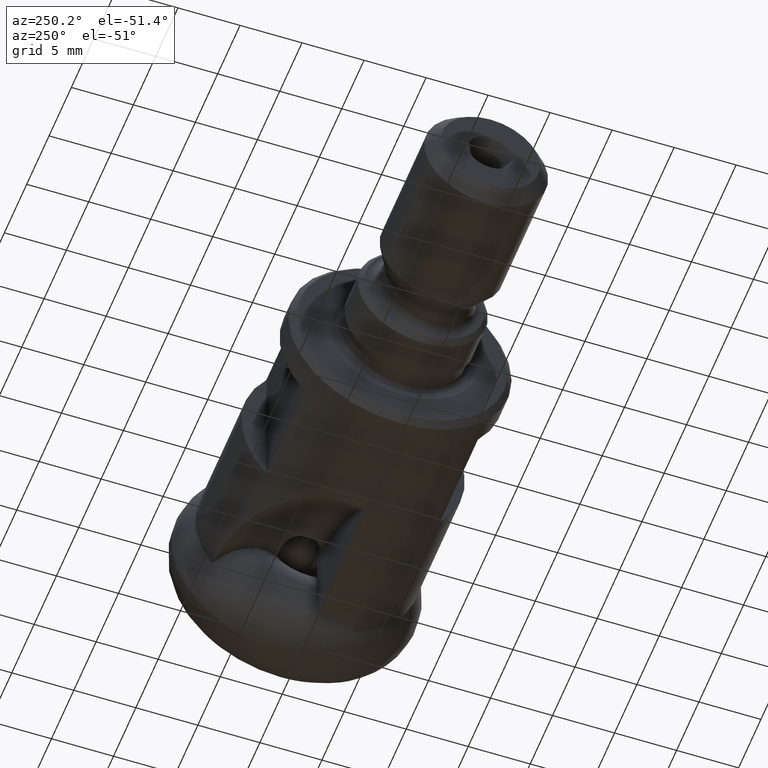
[diagram: clean part render]
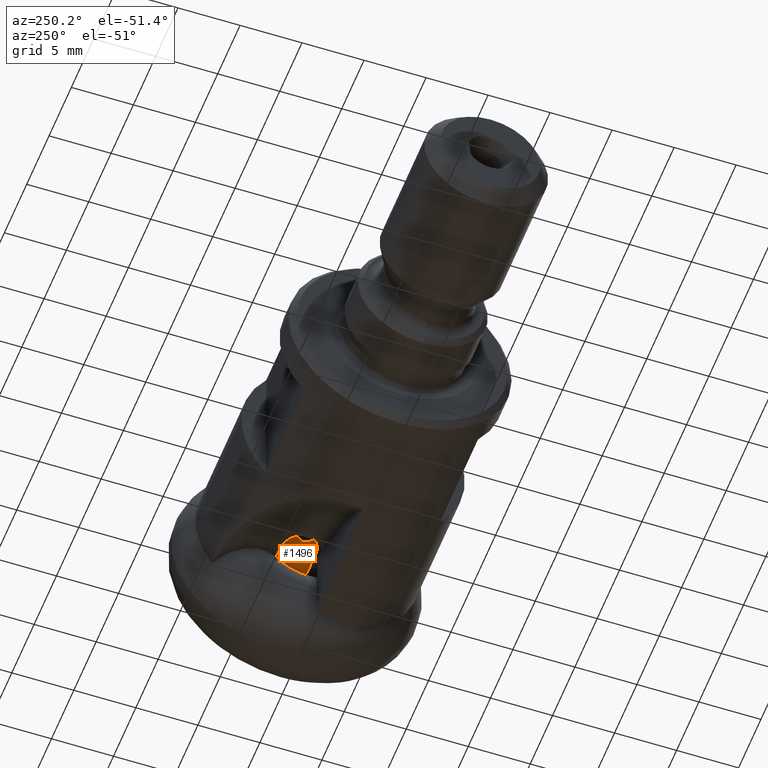
[diagram: same view with one face highlighted and labeled with its STEP entity id]
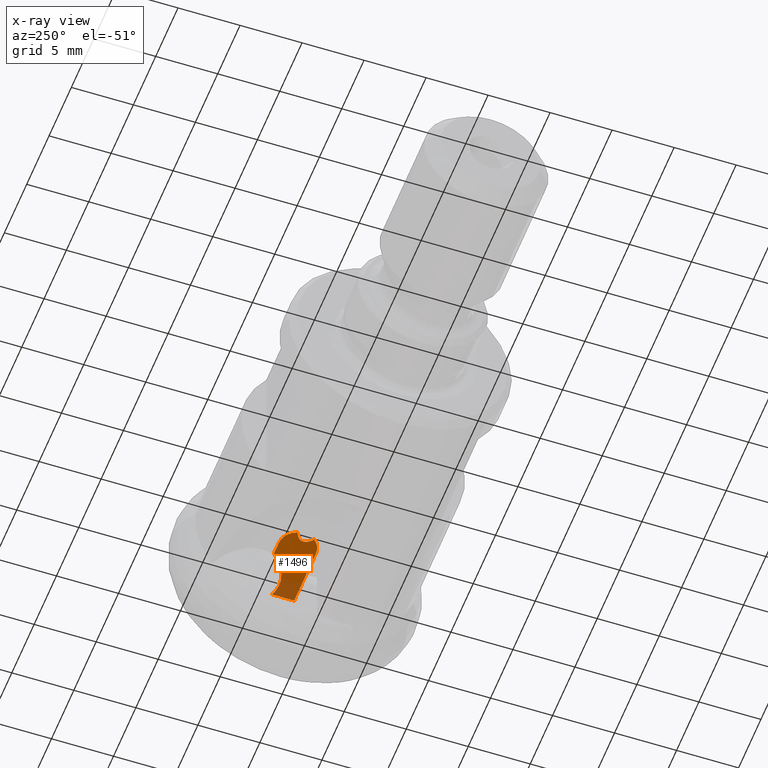
[diagram: x-ray of the same camera — body ghosted, the highlighted face saturated]
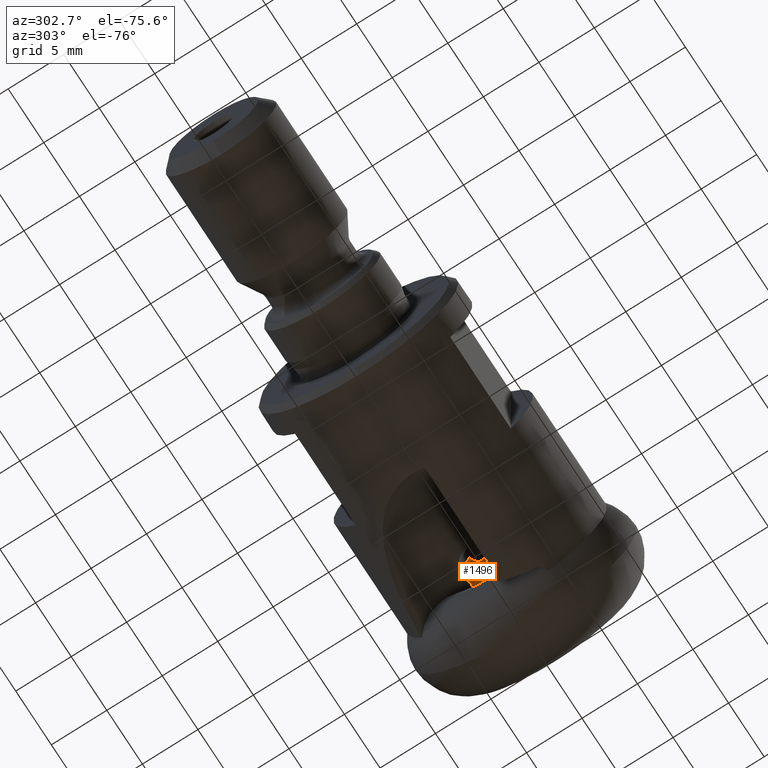
[diagram: same view with one face highlighted and labeled with its STEP entity id]
A machine part, auxiliary view. The second image highlights one B-rep face of the part: STEP entity #1496.
The next image is the same camera in x-ray: the body ghosted, the highlighted face saturated — about 21% of this face is hidden behind the body in this view.
A second angle (auxiliary view) of the same face is appended — the face is thin or edge-on in the first view.
In plain terms, the highlighted planar face has unit normal (0, 0, 1).
Its self-contained STEP definition (entity closure, byte-faithful):
#57 = CARTESIAN_POINT ( 'NONE',  ( -7.954321748443731200, 0.2754545668295102500, -1.542927206851577400 ) ) ;
#107 = VERTEX_POINT ( 'NONE', #3354 ) ;
#202 = CARTESIAN_POINT ( 'NONE',  ( -3.419915937207949100, 1.324605971110862000, -1.542927206851577600 ) ) ;
#214 = AXIS2_PLACEMENT_3D ( 'NONE', #3216, #2640, #1811 ) ;
#220 = CARTESIAN_POINT ( 'NONE',  ( -5.469791025384251900, 2.503767003735955400, -1.542927206851577400 ) ) ;
#229 = VERTEX_POINT ( 'NONE', #3406 ) ;
#298 = LINE ( 'NONE', #2189, #2265 ) ;
#340 = CARTESIAN_POINT ( 'NONE',  ( 1.330137728401510300, 2.700000000000001100, -1.542927206851577400 ) ) ;
#348 = CARTESIAN_POINT ( 'NONE',  ( -7.746609070005470200, 1.551312233072152000, -1.542927206851577400 ) ) ;
#377 = DIRECTION ( 'NONE',  ( 0.0000000000000000000, 0.0000000000000000000, 1.000000000000000000 ) ) ;
#384 = EDGE_LOOP ( 'NONE', ( #2286, #2688, #1902, #1422, #1834, #1949, #892, #3468, #727 ) ) ;
#399 = AXIS2_PLACEMENT_3D ( 'NONE', #2074, #377, #2661 ) ;
#404 = PLANE ( 'NONE',  #214 ) ;
#470 = LINE ( 'NONE', #3388, #3443 ) ;
#501 = CARTESIAN_POINT ( 'NONE',  ( -4.863859866868308400, 1.992741421398262400, -1.542927206851577600 ) ) ;
#633 = CARTESIAN_POINT ( 'NONE',  ( -8.191345038729311400, 1.688532443379743500, -1.542927206851576700 ) ) ;
#663 = CARTESIAN_POINT ( 'NONE',  ( -2.535457270089017900, 1.300931425338245600, -1.542927206851577600 ) ) ;
#689 =( BOUNDED_CURVE ( )  B_SPLINE_CURVE ( 3, ( #57, #2016, #1432, #1970 ),
 .UNSPECIFIED., .F., .F. ) 
 B_SPLINE_CURVE_WITH_KNOTS ( ( 4, 4 ),
 ( 5.515636120032253200, 6.183263371881210400 ),
 .UNSPECIFIED. ) 
 CURVE ( )  GEOMETRIC_REPRESENTATION_ITEM ( )  RATIONAL_B_SPLINE_CURVE ( ( 1.000000000000000000, 0.9631997920935029300, 0.9631997920935029300, 1.000000000000000000 ) ) 
 REPRESENTATION_ITEM ( '' )  );
#727 = ORIENTED_EDGE ( 'NONE', *, *, #3311, .F. ) ;
#754 =( BOUNDED_CURVE ( )  B_SPLINE_CURVE ( 3, ( #2892, #2303, #348, #633 ),
 .UNSPECIFIED., .F., .F. ) 
 B_SPLINE_CURVE_WITH_KNOTS ( ( 4, 4 ),
 ( 6.183263371881210400, 7.016579920087744800 ),
 .UNSPECIFIED. ) 
 CURVE ( )  GEOMETRIC_REPRESENTATION_ITEM ( )  RATIONAL_B_SPLINE_CURVE ( ( 1.000000000000000000, 0.9429643087695061000, 0.9429643087695061000, 1.000000000000000000 ) ) 
 REPRESENTATION_ITEM ( '' )  );
#848 = VERTEX_POINT ( 'NONE', #2672 ) ;
#892 = ORIENTED_EDGE ( 'NONE', *, *, #1686, .T. ) ;
#1021 = LINE ( 'NONE', #340, #1791 ) ;
#1078 = CARTESIAN_POINT ( 'NONE',  ( -3.156360835634836300, 1.282061001862893300, -1.542927206851577400 ) ) ;
#1166 = DIRECTION ( 'NONE',  ( 1.000000000000000000, 0.0000000000000000000, 0.0000000000000000000 ) ) ;
#1230 = CARTESIAN_POINT ( 'NONE',  ( -2.022557340143427600, 1.421539870442018800, -1.542927206851577400 ) ) ;
#1245 = CARTESIAN_POINT ( 'NONE',  ( -1.856999999999999300, -0.2999999999999997100, -1.542927206851577400 ) ) ;
#1323 = CARTESIAN_POINT ( 'NONE',  ( -3.932959807090876700, 1.477680634073480900, -1.542927206851577400 ) ) ;
#1340 = VERTEX_POINT ( 'NONE', #1953 ) ;
#1341 = B_SPLINE_CURVE_WITH_KNOTS ( 'NONE', 3,
 ( #3524, #220, #2182, #501, #2985, #3281, #1323, #202, #1078, #2160 ),
 .UNSPECIFIED., .F., .F.,
 ( 4, 2, 2, 2, 4 ),
 ( 0.02342769509905892600, 0.02422282048651349200, 0.02501794587396805700, 0.02581307126142262700, 0.02660819664887719200 ),
 .UNSPECIFIED. ) ;
#1357 = CIRCLE ( 'NONE', #399, 1.500000000000000400 ) ;
#1400 = VERTEX_POINT ( 'NONE', #2874 ) ;
#1422 = ORIENTED_EDGE ( 'NONE', *, *, #3169, .T. ) ;
#1429 = DIRECTION ( 'NONE',  ( -1.000000000000000000, -1.070385242607283400E-016, 0.0000000000000000000 ) ) ;
#1432 = CARTESIAN_POINT ( 'NONE',  ( -7.503436841425839000, 0.7626254895105163400, -1.542927206851577400 ) ) ;
#1452 = CARTESIAN_POINT ( 'NONE',  ( -2.889773221862426600, 1.282061001861926300, -1.542927206851577400 ) ) ;
#1496 = ADVANCED_FACE ( 'NONE', ( #3528 ), #404, .F. ) ;
#1557 = EDGE_CURVE ( 'NONE', #229, #3186, #1341, .T. ) ;
#1686 = EDGE_CURVE ( 'NONE', #848, #1340, #689, .T. ) ;
#1791 = VECTOR ( 'NONE', #1429, 1000.000000000000000 ) ;
#1811 = DIRECTION ( 'NONE',  ( 1.000000000000000000, 0.0000000000000000000, -0.0000000000000000000 ) ) ;
#1834 = ORIENTED_EDGE ( 'NONE', *, *, #2101, .F. ) ;
#1849 = CARTESIAN_POINT ( 'NONE',  ( -6.773129240000000300, -0.3000000000000003800, -1.542927206851577400 ) ) ;
#1871 = VERTEX_POINT ( 'NONE', #1245 ) ;
#1902 = ORIENTED_EDGE ( 'NONE', *, *, #3210, .T. ) ;
#1949 = ORIENTED_EDGE ( 'NONE', *, *, #2959, .F. ) ;
#1953 = CARTESIAN_POINT ( 'NONE',  ( -7.503436841425837200, 1.004415528135334900, -1.542927206851577400 ) ) ;
#1970 = CARTESIAN_POINT ( 'NONE',  ( -7.503436841425837200, 1.004415528135334900, -1.542927206851577400 ) ) ;
#2016 = CARTESIAN_POINT ( 'NONE',  ( -7.659474010702469500, 0.5103548919704403700, -1.542927206851577400 ) ) ;
#2074 = CARTESIAN_POINT ( 'NONE',  ( -6.773129240000000300, 1.199999999999999700, -1.542927206851577400 ) ) ;
#2101 = EDGE_CURVE ( 'NONE', #2957, #1871, #298, .T. ) ;
#2160 = CARTESIAN_POINT ( 'NONE',  ( -2.889773221862426600, 1.282061001861926300, -1.542927206851577400 ) ) ;
#2161 = B_SPLINE_CURVE_WITH_KNOTS ( 'NONE', 3,
 ( #1452, #2854, #663, #3129, #1230, #3404 ),
 .UNSPECIFIED., .F., .F.,
 ( 4, 2, 4 ),
 ( 0.0007291028378100289500, 0.001255257831813783700, 0.001781412825817538500 ),
 .UNSPECIFIED. ) ;
#2182 = CARTESIAN_POINT ( 'NONE',  ( -5.277058301329734700, 2.323070262128848800, -1.542927206851577600 ) ) ;
#2189 = CARTESIAN_POINT ( 'NONE',  ( 1.330137728401510800, -0.2999999999999992700, -1.542927206851577400 ) ) ;
#2265 = VECTOR ( 'NONE', #2449, 1000.000000000000000 ) ;
#2286 = ORIENTED_EDGE ( 'NONE', *, *, #2288, .F. ) ;
#2288 = EDGE_CURVE ( 'NONE', #229, #107, #1021, .T. ) ;
#2303 = CARTESIAN_POINT ( 'NONE',  ( -7.503436841425839900, 1.309480204407483400, -1.542927206851577400 ) ) ;
#2449 = DIRECTION ( 'NONE',  ( 1.000000000000000000, 1.337981553259104000E-016, -0.0000000000000000000 ) ) ;
#2568 = CARTESIAN_POINT ( 'NONE',  ( -6.773129240000000300, 1.199999999999999700, -1.542927206851577400 ) ) ;
#2598 = DIRECTION ( 'NONE',  ( 0.0000000000000000000, 0.0000000000000000000, 1.000000000000000000 ) ) ;
#2640 = DIRECTION ( 'NONE',  ( 0.0000000000000000000, 0.0000000000000000000, 1.000000000000000000 ) ) ;
#2661 = DIRECTION ( 'NONE',  ( 1.000000000000000000, 0.0000000000000000000, 0.0000000000000000000 ) ) ;
#2672 = CARTESIAN_POINT ( 'NONE',  ( -7.954321748443731200, 0.2754545668295102500, -1.542927206851577400 ) ) ;
#2688 = ORIENTED_EDGE ( 'NONE', *, *, #1557, .T. ) ;
#2854 = CARTESIAN_POINT ( 'NONE',  ( -2.713365316217416700, 1.282061001862911700, -1.542927206851577400 ) ) ;
#2874 = CARTESIAN_POINT ( 'NONE',  ( -1.856999999999999300, 1.485337791303040100, -1.542927206851577400 ) ) ;
#2878 = CARTESIAN_POINT ( 'NONE',  ( -2.889773221862426600, 1.282061001861926300, -1.542927206851577400 ) ) ;
#2892 = CARTESIAN_POINT ( 'NONE',  ( -7.503436841425837200, 1.004415528135334900, -1.542927206851577400 ) ) ;
#2957 = VERTEX_POINT ( 'NONE', #1849 ) ;
#2959 = EDGE_CURVE ( 'NONE', #848, #2957, #1357, .T. ) ;
#2985 = CARTESIAN_POINT ( 'NONE',  ( -4.641327370958118000, 1.841824843192682700, -1.542927206851577400 ) ) ;
#3065 = DIRECTION ( 'NONE',  ( 0.0000000000000000000, -1.000000000000000000, 0.0000000000000000000 ) ) ;
#3129 = CARTESIAN_POINT ( 'NONE',  ( -2.191104727416751000, 1.370784383368791400, -1.542927206851577600 ) ) ;
#3169 = EDGE_CURVE ( 'NONE', #1400, #1871, #470, .T. ) ;
#3186 = VERTEX_POINT ( 'NONE', #2878 ) ;
#3189 = EDGE_CURVE ( 'NONE', #1340, #3366, #754, .T. ) ;
#3210 = EDGE_CURVE ( 'NONE', #3186, #1400, #2161, .T. ) ;
#3216 = CARTESIAN_POINT ( 'NONE',  ( -6.773129240000000300, 1.199999999999999700, -1.542927206851577400 ) ) ;
#3281 = CARTESIAN_POINT ( 'NONE',  ( -4.175650207437558800, 1.584623855532843400, -1.542927206851577600 ) ) ;
#3311 = EDGE_CURVE ( 'NONE', #107, #3366, #3326, .T. ) ;
#3326 = CIRCLE ( 'NONE', #3374, 1.500000000000000400 ) ;
#3354 = CARTESIAN_POINT ( 'NONE',  ( -6.773129240000000300, 2.700000000000000200, -1.542927206851577400 ) ) ;
#3366 = VERTEX_POINT ( 'NONE', #3436 ) ;
#3374 = AXIS2_PLACEMENT_3D ( 'NONE', #2568, #2598, #1166 ) ;
#3388 = CARTESIAN_POINT ( 'NONE',  ( -1.856999999999999300, 4.230000000000000400, -1.542927206851577400 ) ) ;
#3404 = CARTESIAN_POINT ( 'NONE',  ( -1.856999999999999300, 1.485337791303040100, -1.542927206851577400 ) ) ;
#3406 = CARTESIAN_POINT ( 'NONE',  ( -5.648653744702831300, 2.700000000000000200, -1.542927206851577400 ) ) ;
#3436 = CARTESIAN_POINT ( 'NONE',  ( -8.191345038729311400, 1.688532443379743500, -1.542927206851576700 ) ) ;
#3443 = VECTOR ( 'NONE', #3065, 1000.000000000000000 ) ;
#3468 = ORIENTED_EDGE ( 'NONE', *, *, #3189, .T. ) ;
#3524 = CARTESIAN_POINT ( 'NONE',  ( -5.648653744702831300, 2.700000000000000200, -1.542927206851577400 ) ) ;
#3528 = FACE_OUTER_BOUND ( 'NONE', #384, .T. ) ;